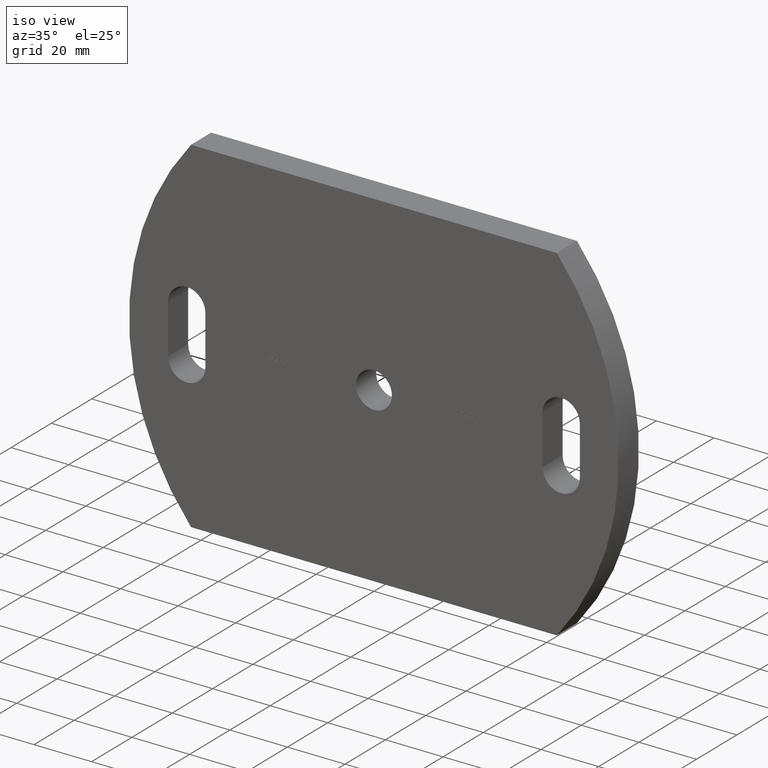
[diagram: clean part render]
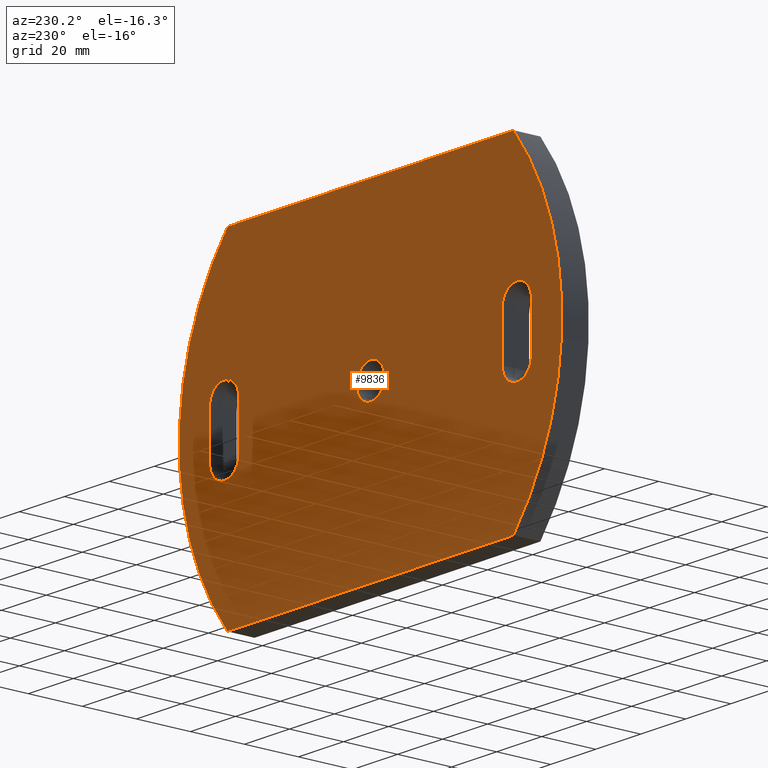
[diagram: tour spotlight — one face highlighted and labeled with its STEP entity id]
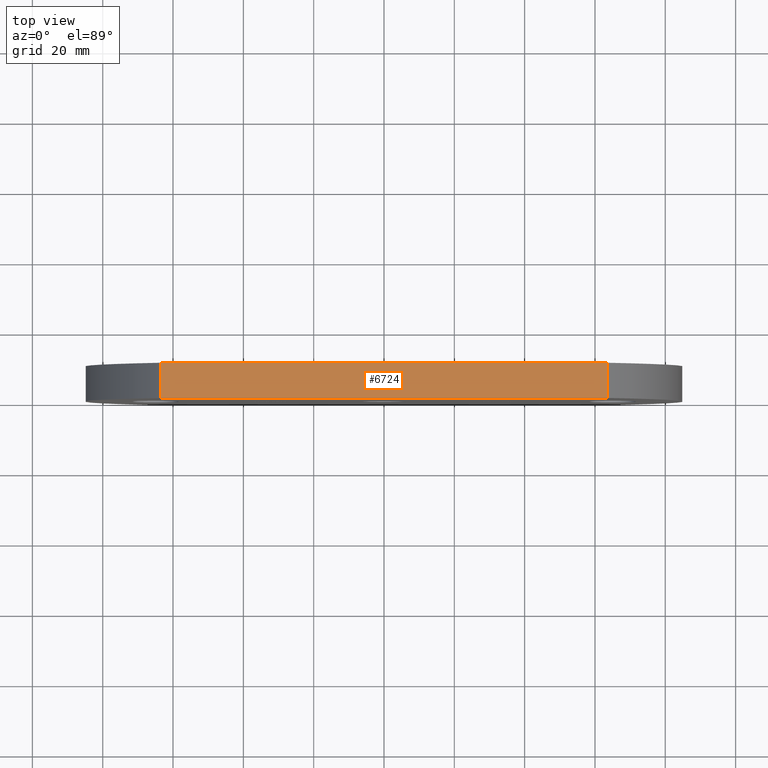
[diagram: tour spotlight — one face highlighted and labeled with its STEP entity id]
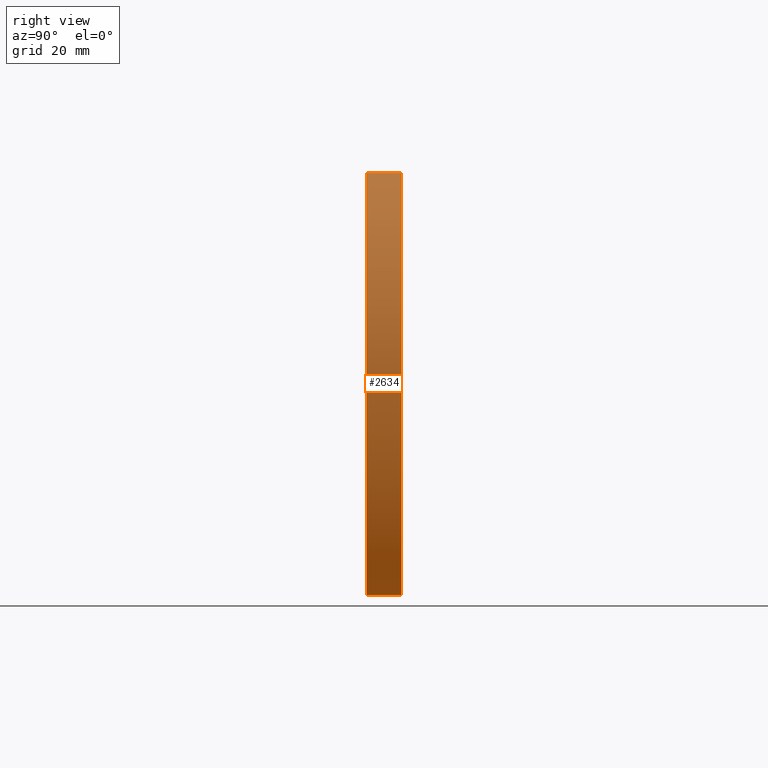
[diagram: tour spotlight — one face highlighted and labeled with its STEP entity id]
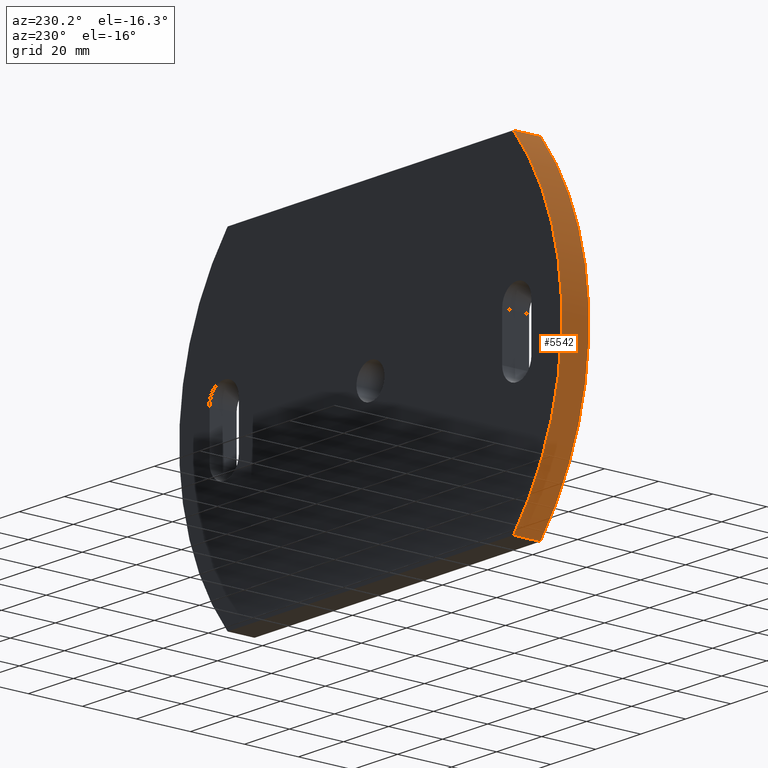
[diagram: tour spotlight — one face highlighted and labeled with its STEP entity id]
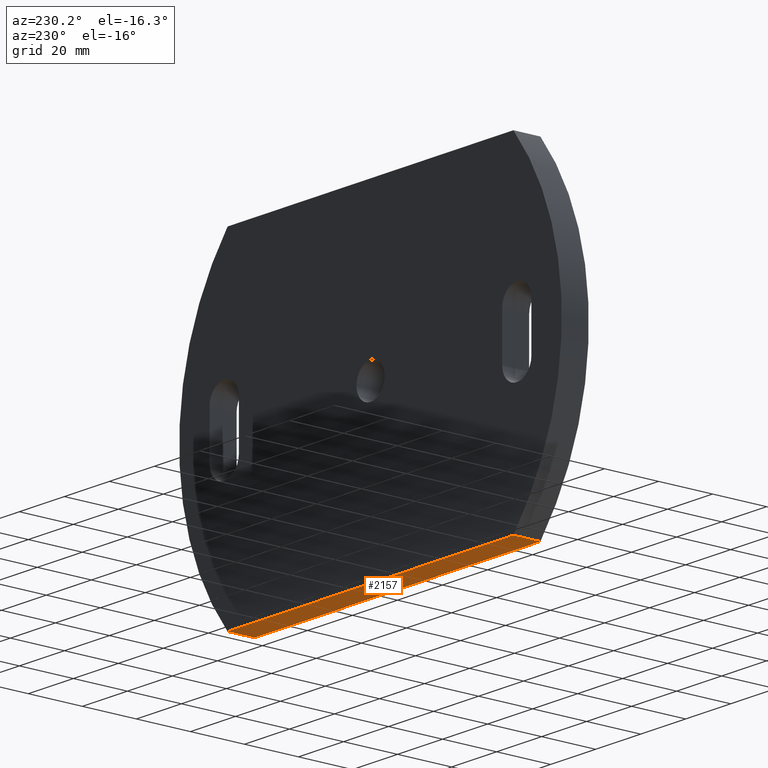
[diagram: tour spotlight — one face highlighted and labeled with its STEP entity id]
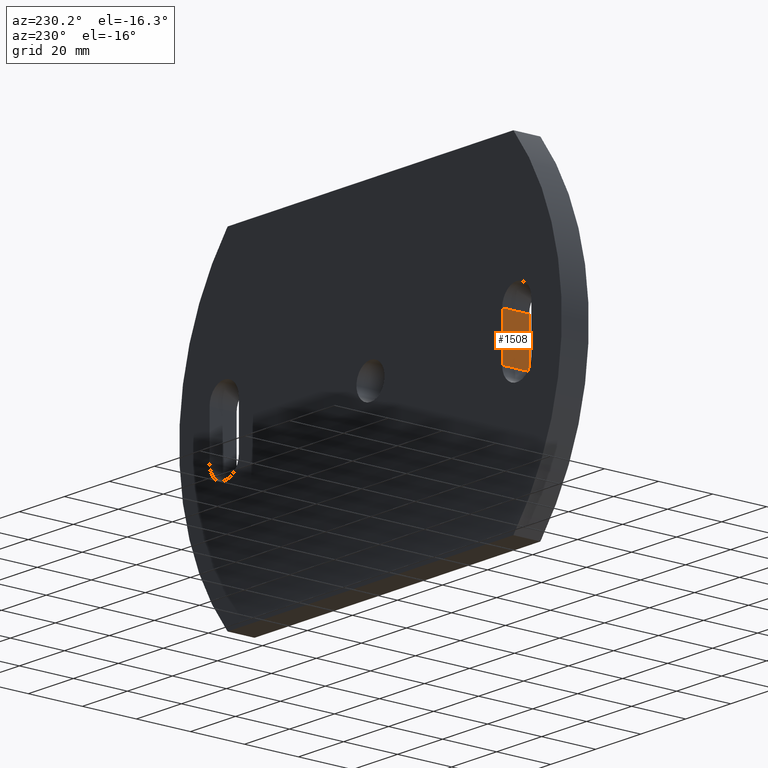
[diagram: tour spotlight — one face highlighted and labeled with its STEP entity id]
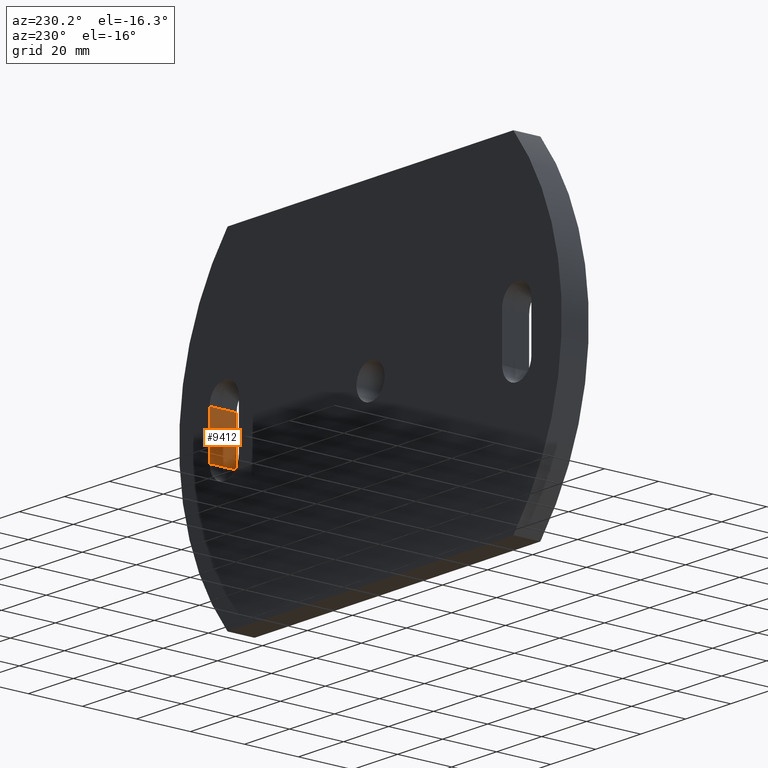
[diagram: tour spotlight — one face highlighted and labeled with its STEP entity id]
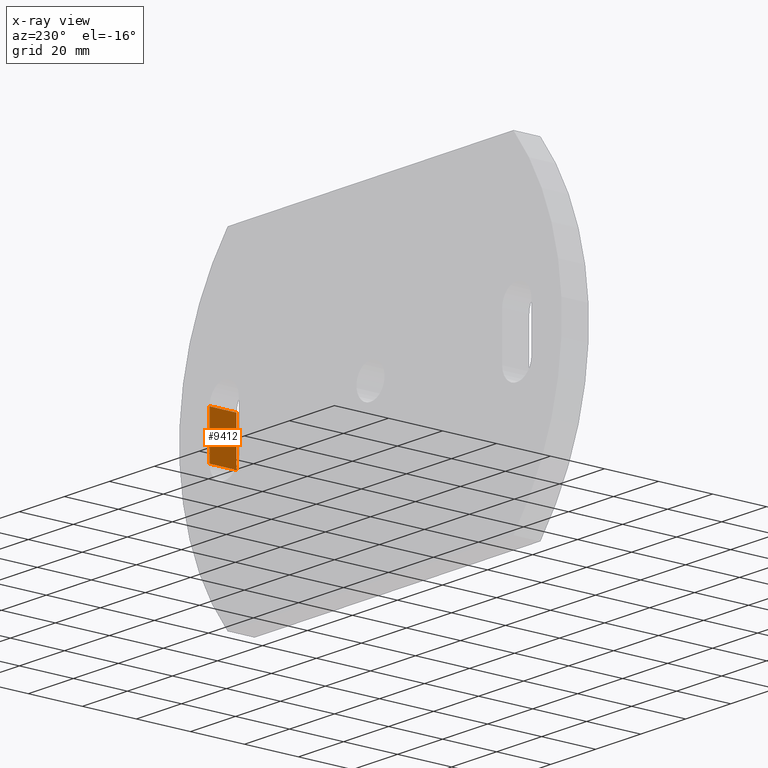
[diagram: x-ray of the same camera — body ghosted, this tour face saturated]
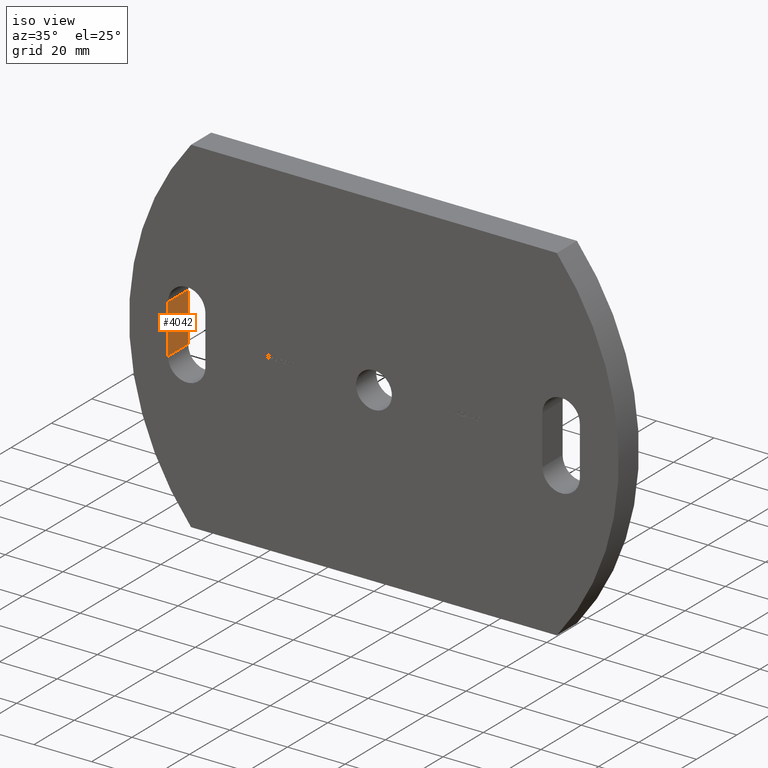
[diagram: tour spotlight — one face highlighted and labeled with its STEP entity id]
A machine part: a face-by-face anatomy tour. The part has 222 B-rep faces; the first image is the clean iso view, then the 8 largest visible faces are spotlighted one at a time (largest first), each with its STEP entity span.

Face 1 — auxiliary view, entity #9836. In plain terms, the highlighted planar face has unit normal (0, -1, 0).
Definition (entity closure, byte-faithful):
#23 = ORIENTED_EDGE ( 'NONE', *, *, #3301, .F. ) ;
#209 = CARTESIAN_POINT ( 'NONE',  ( -65.00000000000000000, 10.00000000000000000, -8.500000000000010700 ) ) ;
#443 = AXIS2_PLACEMENT_3D ( 'NONE', #10272, #9493, #6099 ) ;
#488 = VERTEX_POINT ( 'NONE', #5750 ) ;
#520 = DIRECTION ( 'NONE',  ( 0.0000000000000000000, 1.000000000000000000, 0.0000000000000000000 ) ) ;
#551 = VECTOR ( 'NONE', #7333, 1000.000000000000000 ) ;
#569 = VERTEX_POINT ( 'NONE', #4309 ) ;
#602 = VERTEX_POINT ( 'NONE', #8509 ) ;
#675 = CARTESIAN_POINT ( 'NONE',  ( -71.50000000000000000, 10.00000000000000000, 8.499999999999982200 ) ) ;
#719 = ORIENTED_EDGE ( 'NONE', *, *, #7310, .F. ) ;
#732 = AXIS2_PLACEMENT_3D ( 'NONE', #2830, #6996, #3647 ) ;
#890 = FACE_BOUND ( 'NONE', #6269, .T. ) ;
#921 = CIRCLE ( 'NONE', #732, 6.500000000000005300 ) ;
#929 = EDGE_LOOP ( 'NONE', ( #9715, #8603 ) ) ;
#991 = PLANE ( 'NONE',  #4669 ) ;
#1014 = DIRECTION ( 'NONE',  ( 0.0000000000000000000, 0.0000000000000000000, 1.000000000000000000 ) ) ;
#1066 = EDGE_CURVE ( 'NONE', #2252, #2362, #4580, .T. ) ;
#1146 = LINE ( 'NONE', #7281, #8563 ) ;
#1161 = CIRCLE ( 'NONE', #8375, 6.500000000000005300 ) ;
#1301 = CARTESIAN_POINT ( 'NONE',  ( 0.0000000000000000000, 10.00000000000000000, 0.0000000000000000000 ) ) ;
#1333 = CARTESIAN_POINT ( 'NONE',  ( 58.49999999999998600, 10.00000000000000000, -8.500000000000008900 ) ) ;
#1354 = CARTESIAN_POINT ( 'NONE',  ( 0.0000000000000000000, 10.00000000000000000, 0.0000000000000000000 ) ) ;
#1399 = VERTEX_POINT ( 'NONE', #1914 ) ;
#1411 = VERTEX_POINT ( 'NONE', #3824 ) ;
#1569 = CARTESIAN_POINT ( 'NONE',  ( -71.50000000000000000, 10.00000000000000000, -8.499999999999985800 ) ) ;
#1619 = EDGE_CURVE ( 'NONE', #2362, #9214, #4570, .T. ) ;
#1764 = VERTEX_POINT ( 'NONE', #7202 ) ;
#1838 = VERTEX_POINT ( 'NONE', #3741 ) ;
#1843 = CARTESIAN_POINT ( 'NONE',  ( -9.470930232558071500, 10.00000000000000000, 0.0000000000000000000 ) ) ;
#1914 = CARTESIAN_POINT ( 'NONE',  ( -65.00000000000000000, 10.00000000000000000, 14.99999999999998000 ) ) ;
#1929 = EDGE_CURVE ( 'NONE', #6948, #4202, #1161, .T. ) ;
#1996 = VERTEX_POINT ( 'NONE', #9534 ) ;
#1999 = DIRECTION ( 'NONE',  ( 0.0000000000000000000, 0.0000000000000000000, 1.000000000000000000 ) ) ;
#2232 = EDGE_CURVE ( 'NONE', #1399, #1838, #6102, .T. ) ;
#2252 = VERTEX_POINT ( 'NONE', #9168 ) ;
#2345 = AXIS2_PLACEMENT_3D ( 'NONE', #6882, #5190, #6133 ) ;
#2362 = VERTEX_POINT ( 'NONE', #8503 ) ;
#2408 = AXIS2_PLACEMENT_3D ( 'NONE', #1301, #4592, #7801 ) ;
#2488 = DIRECTION ( 'NONE',  ( -1.000000000000000000, -0.0000000000000000000, -3.278217592397115900E-016 ) ) ;
#2547 = DIRECTION ( 'NONE',  ( 0.0000000000000000000, 0.0000000000000000000, 1.000000000000000000 ) ) ;
#2554 = AXIS2_PLACEMENT_3D ( 'NONE', #8424, #4376, #3577 ) ;
#2629 = ORIENTED_EDGE ( 'NONE', *, *, #3654, .F. ) ;
#2670 = DIRECTION ( 'NONE',  ( 0.0000000000000000000, -1.000000000000000000, 0.0000000000000000000 ) ) ;
#2685 = LINE ( 'NONE', #1333, #4663 ) ;
#2830 = CARTESIAN_POINT ( 'NONE',  ( 65.00000000000000000, 10.00000000000000000, 8.500000000000010700 ) ) ;
#3005 = CIRCLE ( 'NONE', #2554, 94.47093023255811800 ) ;
#3180 = EDGE_LOOP ( 'NONE', ( #2629, #8024, #23, #719, #6128 ) ) ;
#3279 = VECTOR ( 'NONE', #9814, 1000.000000000000000 ) ;
#3301 = EDGE_CURVE ( 'NONE', #602, #6948, #6851, .T. ) ;
#3577 = DIRECTION ( 'NONE',  ( 0.0000000000000000000, 0.0000000000000000000, 1.000000000000000000 ) ) ;
#3647 = DIRECTION ( 'NONE',  ( 0.0000000000000000000, 0.0000000000000000000, 1.000000000000000000 ) ) ;
#3654 = EDGE_CURVE ( 'NONE', #4202, #1996, #2685, .T. ) ;
#3741 = CARTESIAN_POINT ( 'NONE',  ( -58.50000000000000700, 10.00000000000000000, 8.499999999999984000 ) ) ;
#3793 = CARTESIAN_POINT ( 'NONE',  ( 65.00000000000000000, 10.00000000000000000, 8.500000000000010700 ) ) ;
#3824 = CARTESIAN_POINT ( 'NONE',  ( -63.49999999999995700, 10.00000000000000000, -60.00000000000004300 ) ) ;
#4099 = CARTESIAN_POINT ( 'NONE',  ( -65.00000000000000000, 10.00000000000000000, 8.499999999999989300 ) ) ;
#4139 = CARTESIAN_POINT ( 'NONE',  ( -63.50000000000001400, 10.00000000000000000, 59.99999999999997900 ) ) ;
#4181 = ORIENTED_EDGE ( 'NONE', *, *, #5363, .F. ) ;
#4202 = VERTEX_POINT ( 'NONE', #6445 ) ;
#4309 = CARTESIAN_POINT ( 'NONE',  ( 0.0000000000000000000, 10.00000000000000000, 6.250000000000000000 ) ) ;
#4376 = DIRECTION ( 'NONE',  ( 0.0000000000000000000, 1.000000000000000000, 0.0000000000000000000 ) ) ;
#4570 = CIRCLE ( 'NONE', #443, 94.47093023255808900 ) ;
#4580 = LINE ( 'NONE', #4139, #3279 ) ;
#4592 = DIRECTION ( 'NONE',  ( 0.0000000000000000000, 1.000000000000000000, 0.0000000000000000000 ) ) ;
#4663 = VECTOR ( 'NONE', #8008, 1000.000000000000000 ) ;
#4669 = AXIS2_PLACEMENT_3D ( 'NONE', #1843, #2670, #8493 ) ;
#4926 = AXIS2_PLACEMENT_3D ( 'NONE', #3793, #6957, #1999 ) ;
#4976 = CARTESIAN_POINT ( 'NONE',  ( -58.50000000000000700, 10.00000000000000000, -8.499999999999984000 ) ) ;
#5061 = FACE_OUTER_BOUND ( 'NONE', #8954, .T. ) ;
#5073 = VERTEX_POINT ( 'NONE', #675 ) ;
#5139 = DIRECTION ( 'NONE',  ( 0.0000000000000000000, 1.000000000000000000, 0.0000000000000000000 ) ) ;
#5156 = VERTEX_POINT ( 'NONE', #7423 ) ;
#5190 = DIRECTION ( 'NONE',  ( 0.0000000000000000000, 1.000000000000000000, 0.0000000000000000000 ) ) ;
#5321 = FACE_BOUND ( 'NONE', #3180, .T. ) ;
#5363 = EDGE_CURVE ( 'NONE', #9635, #5156, #9212, .T. ) ;
#5590 = CARTESIAN_POINT ( 'NONE',  ( -58.50000000000000700, 10.00000000000000000, -8.499999999999984000 ) ) ;
#5750 = CARTESIAN_POINT ( 'NONE',  ( 65.00000000000000000, 10.00000000000000000, 15.00000000000001600 ) ) ;
#5841 = CIRCLE ( 'NONE', #4926, 6.500000000000005300 ) ;
#6099 = DIRECTION ( 'NONE',  ( 0.0000000000000000000, 0.0000000000000000000, -1.000000000000000000 ) ) ;
#6102 = CIRCLE ( 'NONE', #9833, 6.499999999999992000 ) ;
#6128 = ORIENTED_EDGE ( 'NONE', *, *, #9516, .F. ) ;
#6130 = LINE ( 'NONE', #4976, #551 ) ;
#6133 = DIRECTION ( 'NONE',  ( 0.0000000000000000000, 0.0000000000000000000, 1.000000000000000000 ) ) ;
#6269 = EDGE_LOOP ( 'NONE', ( #7709, #4181, #6545, #10508, #8585 ) ) ;
#6445 = CARTESIAN_POINT ( 'NONE',  ( 58.49999999999998600, 10.00000000000000000, -8.500000000000008900 ) ) ;
#6520 = LINE ( 'NONE', #1569, #7923 ) ;
#6545 = ORIENTED_EDGE ( 'NONE', *, *, #7524, .F. ) ;
#6709 = CARTESIAN_POINT ( 'NONE',  ( 71.50000000000000000, 10.00000000000000000, -8.500000000000010700 ) ) ;
#6720 = ORIENTED_EDGE ( 'NONE', *, *, #10295, .T. ) ;
#6790 = ORIENTED_EDGE ( 'NONE', *, *, #8648, .T. ) ;
#6817 = DIRECTION ( 'NONE',  ( 0.0000000000000000000, 0.0000000000000000000, 1.000000000000000000 ) ) ;
#6851 = LINE ( 'NONE', #6709, #10630 ) ;
#6882 = CARTESIAN_POINT ( 'NONE',  ( -65.00000000000000000, 10.00000000000000000, 8.499999999999989300 ) ) ;
#6940 = CARTESIAN_POINT ( 'NONE',  ( 71.50000000000000000, 10.00000000000000000, -8.500000000000010700 ) ) ;
#6948 = VERTEX_POINT ( 'NONE', #6940 ) ;
#6957 = DIRECTION ( 'NONE',  ( 0.0000000000000000000, 1.000000000000000000, 0.0000000000000000000 ) ) ;
#6964 = EDGE_CURVE ( 'NONE', #569, #1764, #10029, .T. ) ;
#6996 = DIRECTION ( 'NONE',  ( 0.0000000000000000000, 1.000000000000000000, 0.0000000000000000000 ) ) ;
#7151 = DIRECTION ( 'NONE',  ( 0.0000000000000000000, 0.0000000000000000000, 1.000000000000000000 ) ) ;
#7202 = CARTESIAN_POINT ( 'NONE',  ( 7.654042494670957600E-016, 10.00000000000000000, -6.250000000000000000 ) ) ;
#7225 = CARTESIAN_POINT ( 'NONE',  ( 65.00000000000000000, 10.00000000000000000, -8.499999999999987600 ) ) ;
#7265 = FACE_BOUND ( 'NONE', #929, .T. ) ;
#7281 = CARTESIAN_POINT ( 'NONE',  ( -63.49999999999998600, 10.00000000000000000, -60.00000000000001400 ) ) ;
#7287 = EDGE_CURVE ( 'NONE', #1764, #569, #8858, .T. ) ;
#7310 = EDGE_CURVE ( 'NONE', #488, #602, #921, .T. ) ;
#7333 = DIRECTION ( 'NONE',  ( -0.0000000000000000000, -0.0000000000000000000, -1.000000000000000000 ) ) ;
#7423 = CARTESIAN_POINT ( 'NONE',  ( -71.50000000000000000, 10.00000000000000000, -8.499999999999985800 ) ) ;
#7524 = EDGE_CURVE ( 'NONE', #1838, #9635, #6130, .T. ) ;
#7533 = ORIENTED_EDGE ( 'NONE', *, *, #1619, .T. ) ;
#7709 = ORIENTED_EDGE ( 'NONE', *, *, #8566, .F. ) ;
#7801 = DIRECTION ( 'NONE',  ( 0.0000000000000000000, 0.0000000000000000000, 1.000000000000000000 ) ) ;
#7923 = VECTOR ( 'NONE', #2547, 1000.000000000000000 ) ;
#8008 = DIRECTION ( 'NONE',  ( 0.0000000000000000000, 0.0000000000000000000, 1.000000000000000000 ) ) ;
#8024 = ORIENTED_EDGE ( 'NONE', *, *, #1929, .F. ) ;
#8110 = DIRECTION ( 'NONE',  ( 0.0000000000000000000, 1.000000000000000000, 0.0000000000000000000 ) ) ;
#8157 = EDGE_CURVE ( 'NONE', #5073, #1399, #9352, .T. ) ;
#8350 = DIRECTION ( 'NONE',  ( 0.0000000000000000000, 1.000000000000000000, 0.0000000000000000000 ) ) ;
#8375 = AXIS2_PLACEMENT_3D ( 'NONE', #7225, #8110, #7151 ) ;
#8424 = CARTESIAN_POINT ( 'NONE',  ( 9.470930232558114200, 10.00000000000000000, 3.469446951953614200E-015 ) ) ;
#8493 = DIRECTION ( 'NONE',  ( 0.0000000000000000000, -0.0000000000000000000, -1.000000000000000000 ) ) ;
#8503 = CARTESIAN_POINT ( 'NONE',  ( 63.49999999999998600, 10.00000000000000000, 60.00000000000002800 ) ) ;
#8509 = CARTESIAN_POINT ( 'NONE',  ( 71.50000000000000000, 10.00000000000000000, 8.500000000000010700 ) ) ;
#8563 = VECTOR ( 'NONE', #2488, 1000.000000000000000 ) ;
#8566 = EDGE_CURVE ( 'NONE', #5156, #5073, #6520, .T. ) ;
#8585 = ORIENTED_EDGE ( 'NONE', *, *, #8157, .F. ) ;
#8603 = ORIENTED_EDGE ( 'NONE', *, *, #7287, .F. ) ;
#8605 = ORIENTED_EDGE ( 'NONE', *, *, #1066, .T. ) ;
#8648 = EDGE_CURVE ( 'NONE', #1411, #2252, #3005, .T. ) ;
#8858 = CIRCLE ( 'NONE', #2408, 6.250000000000000000 ) ;
#8954 = EDGE_LOOP ( 'NONE', ( #7533, #6720, #6790, #8605 ) ) ;
#8993 = CARTESIAN_POINT ( 'NONE',  ( 63.50000000000001400, 10.00000000000000000, -59.99999999999997200 ) ) ;
#9168 = CARTESIAN_POINT ( 'NONE',  ( -63.50000000000001400, 10.00000000000000000, 59.99999999999997900 ) ) ;
#9212 = CIRCLE ( 'NONE', #10107, 6.499999999999992000 ) ;
#9214 = VERTEX_POINT ( 'NONE', #8993 ) ;
#9352 = CIRCLE ( 'NONE', #2345, 6.499999999999992000 ) ;
#9493 = DIRECTION ( 'NONE',  ( 0.0000000000000000000, 1.000000000000000000, -0.0000000000000000000 ) ) ;
#9516 = EDGE_CURVE ( 'NONE', #1996, #488, #5841, .T. ) ;
#9534 = CARTESIAN_POINT ( 'NONE',  ( 58.50000000000000000, 10.00000000000000000, 8.500000000000008900 ) ) ;
#9635 = VERTEX_POINT ( 'NONE', #5590 ) ;
#9715 = ORIENTED_EDGE ( 'NONE', *, *, #6964, .F. ) ;
#9814 = DIRECTION ( 'NONE',  ( 1.000000000000000000, 0.0000000000000000000, 3.824587191129968500E-016 ) ) ;
#9833 = AXIS2_PLACEMENT_3D ( 'NONE', #4099, #8350, #6817 ) ;
#9836 = ADVANCED_FACE ( 'NONE', ( #5321, #890, #7265, #5061 ), #991, .F. ) ;
#10029 = CIRCLE ( 'NONE', #10258, 6.250000000000000000 ) ;
#10039 = DIRECTION ( 'NONE',  ( -0.0000000000000000000, -0.0000000000000000000, -1.000000000000000000 ) ) ;
#10107 = AXIS2_PLACEMENT_3D ( 'NONE', #209, #5139, #1014 ) ;
#10258 = AXIS2_PLACEMENT_3D ( 'NONE', #1354, #520, #10429 ) ;
#10272 = CARTESIAN_POINT ( 'NONE',  ( -9.470930232558071500, 10.00000000000000000, 0.0000000000000000000 ) ) ;
#10295 = EDGE_CURVE ( 'NONE', #9214, #1411, #1146, .T. ) ;
#10429 = DIRECTION ( 'NONE',  ( 0.0000000000000000000, 0.0000000000000000000, 1.000000000000000000 ) ) ;
#10508 = ORIENTED_EDGE ( 'NONE', *, *, #2232, .F. ) ;
#10630 = VECTOR ( 'NONE', #10039, 1000.000000000000000 ) ;

Face 2 — top view, entity #6724. In plain terms, the highlighted planar face has unit normal (0, 0, -1).
Definition (entity closure, byte-faithful):
#15 = DIRECTION ( 'NONE',  ( 1.000000000000000000, 0.0000000000000000000, 3.824587191129968500E-016 ) ) ;
#1053 = CARTESIAN_POINT ( 'NONE',  ( -63.50000000000001400, 10.00000000000000000, 59.99999999999997900 ) ) ;
#1066 = EDGE_CURVE ( 'NONE', #2252, #2362, #4580, .T. ) ;
#1293 = EDGE_CURVE ( 'NONE', #2362, #3189, #6759, .T. ) ;
#1732 = EDGE_LOOP ( 'NONE', ( #5044, #1854, #10488, #2679 ) ) ;
#1759 = DIRECTION ( 'NONE',  ( -1.000000000000000000, 0.0000000000000000000, -3.824587191129968500E-016 ) ) ;
#1854 = ORIENTED_EDGE ( 'NONE', *, *, #1293, .F. ) ;
#2252 = VERTEX_POINT ( 'NONE', #9168 ) ;
#2362 = VERTEX_POINT ( 'NONE', #8503 ) ;
#2679 = ORIENTED_EDGE ( 'NONE', *, *, #5646, .T. ) ;
#2798 = CARTESIAN_POINT ( 'NONE',  ( 63.49999999999998600, 10.00000000000000000, 60.00000000000002800 ) ) ;
#3189 = VERTEX_POINT ( 'NONE', #7870 ) ;
#3279 = VECTOR ( 'NONE', #9814, 1000.000000000000000 ) ;
#3447 = DIRECTION ( 'NONE',  ( 3.824587191129968500E-016, 0.0000000000000000000, -1.000000000000000000 ) ) ;
#3457 = LINE ( 'NONE', #10426, #6831 ) ;
#4139 = CARTESIAN_POINT ( 'NONE',  ( -63.50000000000001400, 10.00000000000000000, 59.99999999999997900 ) ) ;
#4359 = PLANE ( 'NONE',  #8604 ) ;
#4580 = LINE ( 'NONE', #4139, #3279 ) ;
#4620 = FACE_OUTER_BOUND ( 'NONE', #1732, .T. ) ;
#5044 = ORIENTED_EDGE ( 'NONE', *, *, #7140, .T. ) ;
#5646 = EDGE_CURVE ( 'NONE', #2252, #7098, #3457, .T. ) ;
#6388 = VECTOR ( 'NONE', #8580, 1000.000000000000000 ) ;
#6526 = VECTOR ( 'NONE', #15, 1000.000000000000000 ) ;
#6724 = ADVANCED_FACE ( 'NONE', ( #4620 ), #4359, .F. ) ;
#6759 = LINE ( 'NONE', #2798, #6388 ) ;
#6831 = VECTOR ( 'NONE', #7953, 1000.000000000000000 ) ;
#7098 = VERTEX_POINT ( 'NONE', #7342 ) ;
#7140 = EDGE_CURVE ( 'NONE', #7098, #3189, #7817, .T. ) ;
#7342 = CARTESIAN_POINT ( 'NONE',  ( -63.50000000000001400, 0.0000000000000000000, 59.99999999999997900 ) ) ;
#7585 = CARTESIAN_POINT ( 'NONE',  ( -63.50000000000001400, 0.0000000000000000000, 59.99999999999997900 ) ) ;
#7817 = LINE ( 'NONE', #7585, #6526 ) ;
#7870 = CARTESIAN_POINT ( 'NONE',  ( 63.49999999999998600, 0.0000000000000000000, 60.00000000000002800 ) ) ;
#7953 = DIRECTION ( 'NONE',  ( -0.0000000000000000000, -1.000000000000000000, -0.0000000000000000000 ) ) ;
#8503 = CARTESIAN_POINT ( 'NONE',  ( 63.49999999999998600, 10.00000000000000000, 60.00000000000002800 ) ) ;
#8580 = DIRECTION ( 'NONE',  ( -0.0000000000000000000, -1.000000000000000000, -0.0000000000000000000 ) ) ;
#8604 = AXIS2_PLACEMENT_3D ( 'NONE', #1053, #3447, #1759 ) ;
#9168 = CARTESIAN_POINT ( 'NONE',  ( -63.50000000000001400, 10.00000000000000000, 59.99999999999997900 ) ) ;
#9814 = DIRECTION ( 'NONE',  ( 1.000000000000000000, 0.0000000000000000000, 3.824587191129968500E-016 ) ) ;
#10426 = CARTESIAN_POINT ( 'NONE',  ( -63.50000000000001400, 10.00000000000000000, 59.99999999999997900 ) ) ;
#10488 = ORIENTED_EDGE ( 'NONE', *, *, #1066, .F. ) ;

Face 3 — right view, entity #2634. In plain terms, the highlighted cylindrical surface (partial cylindrical patch) has radius 94.4709 mm, axis along (-0, -1, -0).
Definition (entity closure, byte-faithful):
#183 = AXIS2_PLACEMENT_3D ( 'NONE', #2688, #4390, #10165 ) ;
#362 = CARTESIAN_POINT ( 'NONE',  ( -9.470930232558071500, 0.0000000000000000000, 0.0000000000000000000 ) ) ;
#443 = AXIS2_PLACEMENT_3D ( 'NONE', #10272, #9493, #6099 ) ;
#646 = LINE ( 'NONE', #6124, #2070 ) ;
#1293 = EDGE_CURVE ( 'NONE', #2362, #3189, #6759, .T. ) ;
#1355 = CARTESIAN_POINT ( 'NONE',  ( 63.50000000000001400, 0.0000000000000000000, -59.99999999999997200 ) ) ;
#1566 = ORIENTED_EDGE ( 'NONE', *, *, #9882, .F. ) ;
#1619 = EDGE_CURVE ( 'NONE', #2362, #9214, #4570, .T. ) ;
#1828 = EDGE_LOOP ( 'NONE', ( #8877, #1566, #10197, #4056 ) ) ;
#1887 = DIRECTION ( 'NONE',  ( 0.0000000000000000000, 0.0000000000000000000, -1.000000000000000000 ) ) ;
#2070 = VECTOR ( 'NONE', #8528, 1000.000000000000000 ) ;
#2072 = FACE_OUTER_BOUND ( 'NONE', #1828, .T. ) ;
#2362 = VERTEX_POINT ( 'NONE', #8503 ) ;
#2634 = ADVANCED_FACE ( 'NONE', ( #2072 ), #4686, .T. ) ;
#2688 = CARTESIAN_POINT ( 'NONE',  ( -9.470930232558071500, 10.00000000000000000, 0.0000000000000000000 ) ) ;
#2798 = CARTESIAN_POINT ( 'NONE',  ( 63.49999999999998600, 10.00000000000000000, 60.00000000000002800 ) ) ;
#3189 = VERTEX_POINT ( 'NONE', #7870 ) ;
#4056 = ORIENTED_EDGE ( 'NONE', *, *, #1293, .T. ) ;
#4192 = CIRCLE ( 'NONE', #5687, 94.47093023255808900 ) ;
#4390 = DIRECTION ( 'NONE',  ( -0.0000000000000000000, -1.000000000000000000, -0.0000000000000000000 ) ) ;
#4570 = CIRCLE ( 'NONE', #443, 94.47093023255808900 ) ;
#4606 = VERTEX_POINT ( 'NONE', #1355 ) ;
#4686 = CYLINDRICAL_SURFACE ( 'NONE', #183, 94.47093023255808900 ) ;
#5687 = AXIS2_PLACEMENT_3D ( 'NONE', #362, #6958, #1887 ) ;
#6099 = DIRECTION ( 'NONE',  ( 0.0000000000000000000, 0.0000000000000000000, -1.000000000000000000 ) ) ;
#6124 = CARTESIAN_POINT ( 'NONE',  ( 63.50000000000001400, 10.00000000000000000, -59.99999999999997200 ) ) ;
#6388 = VECTOR ( 'NONE', #8580, 1000.000000000000000 ) ;
#6759 = LINE ( 'NONE', #2798, #6388 ) ;
#6958 = DIRECTION ( 'NONE',  ( 0.0000000000000000000, 1.000000000000000000, -0.0000000000000000000 ) ) ;
#7870 = CARTESIAN_POINT ( 'NONE',  ( 63.49999999999998600, 0.0000000000000000000, 60.00000000000002800 ) ) ;
#8158 = EDGE_CURVE ( 'NONE', #3189, #4606, #4192, .T. ) ;
#8503 = CARTESIAN_POINT ( 'NONE',  ( 63.49999999999998600, 10.00000000000000000, 60.00000000000002800 ) ) ;
#8528 = DIRECTION ( 'NONE',  ( -0.0000000000000000000, -1.000000000000000000, -0.0000000000000000000 ) ) ;
#8580 = DIRECTION ( 'NONE',  ( -0.0000000000000000000, -1.000000000000000000, -0.0000000000000000000 ) ) ;
#8877 = ORIENTED_EDGE ( 'NONE', *, *, #8158, .T. ) ;
#8993 = CARTESIAN_POINT ( 'NONE',  ( 63.50000000000001400, 10.00000000000000000, -59.99999999999997200 ) ) ;
#9214 = VERTEX_POINT ( 'NONE', #8993 ) ;
#9493 = DIRECTION ( 'NONE',  ( 0.0000000000000000000, 1.000000000000000000, -0.0000000000000000000 ) ) ;
#9882 = EDGE_CURVE ( 'NONE', #9214, #4606, #646, .T. ) ;
#10165 = DIRECTION ( 'NONE',  ( 0.0000000000000000000, 0.0000000000000000000, -1.000000000000000000 ) ) ;
#10197 = ORIENTED_EDGE ( 'NONE', *, *, #1619, .F. ) ;
#10272 = CARTESIAN_POINT ( 'NONE',  ( -9.470930232558071500, 10.00000000000000000, 0.0000000000000000000 ) ) ;

Face 4 — auxiliary view, entity #5542. In plain terms, the highlighted cylindrical surface (partial cylindrical patch) has radius 94.4709 mm, axis along (-0, -1, -0).
Definition (entity closure, byte-faithful):
#344 = DIRECTION ( 'NONE',  ( 0.0000000000000000000, 0.0000000000000000000, -1.000000000000000000 ) ) ;
#1016 = CYLINDRICAL_SURFACE ( 'NONE', #6381, 94.47093023255811800 ) ;
#1411 = VERTEX_POINT ( 'NONE', #3824 ) ;
#1627 = VERTEX_POINT ( 'NONE', #4494 ) ;
#1653 = CARTESIAN_POINT ( 'NONE',  ( 9.470930232558114200, 0.0000000000000000000, 3.469446951953614200E-015 ) ) ;
#2252 = VERTEX_POINT ( 'NONE', #9168 ) ;
#2554 = AXIS2_PLACEMENT_3D ( 'NONE', #8424, #4376, #3577 ) ;
#2805 = CARTESIAN_POINT ( 'NONE',  ( 9.470930232558114200, 10.00000000000000000, 3.469446951953614200E-015 ) ) ;
#2840 = DIRECTION ( 'NONE',  ( -0.0000000000000000000, -1.000000000000000000, -0.0000000000000000000 ) ) ;
#2881 = DIRECTION ( 'NONE',  ( -0.0000000000000000000, -1.000000000000000000, -0.0000000000000000000 ) ) ;
#2949 = AXIS2_PLACEMENT_3D ( 'NONE', #1653, #9116, #4145 ) ;
#2985 = EDGE_LOOP ( 'NONE', ( #4916, #9788, #5047, #4070 ) ) ;
#3005 = CIRCLE ( 'NONE', #2554, 94.47093023255811800 ) ;
#3448 = FACE_OUTER_BOUND ( 'NONE', #2985, .T. ) ;
#3457 = LINE ( 'NONE', #10426, #6831 ) ;
#3577 = DIRECTION ( 'NONE',  ( 0.0000000000000000000, 0.0000000000000000000, 1.000000000000000000 ) ) ;
#3824 = CARTESIAN_POINT ( 'NONE',  ( -63.49999999999995700, 10.00000000000000000, -60.00000000000004300 ) ) ;
#3867 = EDGE_CURVE ( 'NONE', #1627, #7098, #5412, .T. ) ;
#4070 = ORIENTED_EDGE ( 'NONE', *, *, #9031, .T. ) ;
#4145 = DIRECTION ( 'NONE',  ( 0.0000000000000000000, 0.0000000000000000000, 1.000000000000000000 ) ) ;
#4376 = DIRECTION ( 'NONE',  ( 0.0000000000000000000, 1.000000000000000000, 0.0000000000000000000 ) ) ;
#4494 = CARTESIAN_POINT ( 'NONE',  ( -63.49999999999995700, 0.0000000000000000000, -60.00000000000004300 ) ) ;
#4916 = ORIENTED_EDGE ( 'NONE', *, *, #3867, .T. ) ;
#5047 = ORIENTED_EDGE ( 'NONE', *, *, #8648, .F. ) ;
#5331 = LINE ( 'NONE', #7846, #5853 ) ;
#5412 = CIRCLE ( 'NONE', #2949, 94.47093023255811800 ) ;
#5542 = ADVANCED_FACE ( 'NONE', ( #3448 ), #1016, .T. ) ;
#5646 = EDGE_CURVE ( 'NONE', #2252, #7098, #3457, .T. ) ;
#5853 = VECTOR ( 'NONE', #2840, 1000.000000000000000 ) ;
#6381 = AXIS2_PLACEMENT_3D ( 'NONE', #2805, #2881, #344 ) ;
#6831 = VECTOR ( 'NONE', #7953, 1000.000000000000000 ) ;
#7098 = VERTEX_POINT ( 'NONE', #7342 ) ;
#7342 = CARTESIAN_POINT ( 'NONE',  ( -63.50000000000001400, 0.0000000000000000000, 59.99999999999997900 ) ) ;
#7846 = CARTESIAN_POINT ( 'NONE',  ( -63.49999999999995700, 10.00000000000000000, -60.00000000000004300 ) ) ;
#7953 = DIRECTION ( 'NONE',  ( -0.0000000000000000000, -1.000000000000000000, -0.0000000000000000000 ) ) ;
#8424 = CARTESIAN_POINT ( 'NONE',  ( 9.470930232558114200, 10.00000000000000000, 3.469446951953614200E-015 ) ) ;
#8648 = EDGE_CURVE ( 'NONE', #1411, #2252, #3005, .T. ) ;
#9031 = EDGE_CURVE ( 'NONE', #1411, #1627, #5331, .T. ) ;
#9116 = DIRECTION ( 'NONE',  ( 0.0000000000000000000, 1.000000000000000000, 0.0000000000000000000 ) ) ;
#9168 = CARTESIAN_POINT ( 'NONE',  ( -63.50000000000001400, 10.00000000000000000, 59.99999999999997900 ) ) ;
#9788 = ORIENTED_EDGE ( 'NONE', *, *, #5646, .F. ) ;
#10426 = CARTESIAN_POINT ( 'NONE',  ( -63.50000000000001400, 10.00000000000000000, 59.99999999999997900 ) ) ;

Face 5 — auxiliary view, entity #2157. In plain terms, the highlighted planar face has unit normal (-0, 0, 1).
Definition (entity closure, byte-faithful):
#340 = CARTESIAN_POINT ( 'NONE',  ( -63.49999999999998600, 10.00000000000000000, -60.00000000000001400 ) ) ;
#622 = DIRECTION ( 'NONE',  ( -3.278217592397115900E-016, 0.0000000000000000000, 1.000000000000000000 ) ) ;
#646 = LINE ( 'NONE', #6124, #2070 ) ;
#1146 = LINE ( 'NONE', #7281, #8563 ) ;
#1355 = CARTESIAN_POINT ( 'NONE',  ( 63.50000000000001400, 0.0000000000000000000, -59.99999999999997200 ) ) ;
#1411 = VERTEX_POINT ( 'NONE', #3824 ) ;
#1526 = DIRECTION ( 'NONE',  ( 1.000000000000000000, 0.0000000000000000000, 3.278217592397115900E-016 ) ) ;
#1627 = VERTEX_POINT ( 'NONE', #4494 ) ;
#1805 = EDGE_CURVE ( 'NONE', #4606, #1627, #3655, .T. ) ;
#1922 = ORIENTED_EDGE ( 'NONE', *, *, #9882, .T. ) ;
#2070 = VECTOR ( 'NONE', #8528, 1000.000000000000000 ) ;
#2157 = ADVANCED_FACE ( 'NONE', ( #5325 ), #9942, .F. ) ;
#2488 = DIRECTION ( 'NONE',  ( -1.000000000000000000, -0.0000000000000000000, -3.278217592397115900E-016 ) ) ;
#2840 = DIRECTION ( 'NONE',  ( -0.0000000000000000000, -1.000000000000000000, -0.0000000000000000000 ) ) ;
#3655 = LINE ( 'NONE', #4067, #4057 ) ;
#3824 = CARTESIAN_POINT ( 'NONE',  ( -63.49999999999995700, 10.00000000000000000, -60.00000000000004300 ) ) ;
#4057 = VECTOR ( 'NONE', #10208, 1000.000000000000000 ) ;
#4067 = CARTESIAN_POINT ( 'NONE',  ( -63.49999999999998600, 0.0000000000000000000, -60.00000000000001400 ) ) ;
#4383 = ORIENTED_EDGE ( 'NONE', *, *, #9031, .F. ) ;
#4494 = CARTESIAN_POINT ( 'NONE',  ( -63.49999999999995700, 0.0000000000000000000, -60.00000000000004300 ) ) ;
#4606 = VERTEX_POINT ( 'NONE', #1355 ) ;
#5325 = FACE_OUTER_BOUND ( 'NONE', #8770, .T. ) ;
#5331 = LINE ( 'NONE', #7846, #5853 ) ;
#5853 = VECTOR ( 'NONE', #2840, 1000.000000000000000 ) ;
#6124 = CARTESIAN_POINT ( 'NONE',  ( 63.50000000000001400, 10.00000000000000000, -59.99999999999997200 ) ) ;
#7281 = CARTESIAN_POINT ( 'NONE',  ( -63.49999999999998600, 10.00000000000000000, -60.00000000000001400 ) ) ;
#7846 = CARTESIAN_POINT ( 'NONE',  ( -63.49999999999995700, 10.00000000000000000, -60.00000000000004300 ) ) ;
#8528 = DIRECTION ( 'NONE',  ( -0.0000000000000000000, -1.000000000000000000, -0.0000000000000000000 ) ) ;
#8563 = VECTOR ( 'NONE', #2488, 1000.000000000000000 ) ;
#8722 = AXIS2_PLACEMENT_3D ( 'NONE', #340, #622, #1526 ) ;
#8770 = EDGE_LOOP ( 'NONE', ( #10445, #4383, #8891, #1922 ) ) ;
#8891 = ORIENTED_EDGE ( 'NONE', *, *, #10295, .F. ) ;
#8993 = CARTESIAN_POINT ( 'NONE',  ( 63.50000000000001400, 10.00000000000000000, -59.99999999999997200 ) ) ;
#9031 = EDGE_CURVE ( 'NONE', #1411, #1627, #5331, .T. ) ;
#9214 = VERTEX_POINT ( 'NONE', #8993 ) ;
#9882 = EDGE_CURVE ( 'NONE', #9214, #4606, #646, .T. ) ;
#9942 = PLANE ( 'NONE',  #8722 ) ;
#10208 = DIRECTION ( 'NONE',  ( -1.000000000000000000, -0.0000000000000000000, -3.278217592397115900E-016 ) ) ;
#10295 = EDGE_CURVE ( 'NONE', #9214, #1411, #1146, .T. ) ;
#10445 = ORIENTED_EDGE ( 'NONE', *, *, #1805, .T. ) ;

Face 6 — auxiliary view, entity #1508. In plain terms, the highlighted planar face has unit normal (1, 0, -0).
Definition (entity closure, byte-faithful):
#101 = CARTESIAN_POINT ( 'NONE',  ( -58.50000000000000700, 0.0000000000000000000, 8.499999999999984000 ) ) ;
#444 = LINE ( 'NONE', #101, #4615 ) ;
#551 = VECTOR ( 'NONE', #7333, 1000.000000000000000 ) ;
#1441 = CARTESIAN_POINT ( 'NONE',  ( -58.50000000000000700, 0.0000000000000000000, -8.499999999999984000 ) ) ;
#1508 = ADVANCED_FACE ( 'NONE', ( #8959 ), #9746, .F. ) ;
#1753 = VECTOR ( 'NONE', #3095, 1000.000000000000000 ) ;
#1838 = VERTEX_POINT ( 'NONE', #3741 ) ;
#2423 = ORIENTED_EDGE ( 'NONE', *, *, #2874, .F. ) ;
#2583 = VECTOR ( 'NONE', #6789, 1000.000000000000000 ) ;
#2874 = EDGE_CURVE ( 'NONE', #7906, #9635, #3376, .T. ) ;
#3095 = DIRECTION ( 'NONE',  ( -0.0000000000000000000, -0.0000000000000000000, -1.000000000000000000 ) ) ;
#3157 = CARTESIAN_POINT ( 'NONE',  ( -58.50000000000000700, 0.0000000000000000000, -8.499999999999984000 ) ) ;
#3376 = LINE ( 'NONE', #4382, #2583 ) ;
#3741 = CARTESIAN_POINT ( 'NONE',  ( -58.50000000000000700, 10.00000000000000000, 8.499999999999984000 ) ) ;
#3914 = ORIENTED_EDGE ( 'NONE', *, *, #5305, .T. ) ;
#4382 = CARTESIAN_POINT ( 'NONE',  ( -58.50000000000000700, 0.0000000000000000000, -8.499999999999984000 ) ) ;
#4615 = VECTOR ( 'NONE', #5901, 1000.000000000000000 ) ;
#4819 = DIRECTION ( 'NONE',  ( 1.000000000000000000, 0.0000000000000000000, -0.0000000000000000000 ) ) ;
#4976 = CARTESIAN_POINT ( 'NONE',  ( -58.50000000000000700, 10.00000000000000000, -8.499999999999984000 ) ) ;
#5037 = AXIS2_PLACEMENT_3D ( 'NONE', #1441, #4819, #7278 ) ;
#5305 = EDGE_CURVE ( 'NONE', #6308, #1838, #444, .T. ) ;
#5590 = CARTESIAN_POINT ( 'NONE',  ( -58.50000000000000700, 10.00000000000000000, -8.499999999999984000 ) ) ;
#5592 = CARTESIAN_POINT ( 'NONE',  ( -58.50000000000000700, 0.0000000000000000000, -8.499999999999984000 ) ) ;
#5884 = EDGE_CURVE ( 'NONE', #6308, #7906, #6174, .T. ) ;
#5901 = DIRECTION ( 'NONE',  ( -0.0000000000000000000, 1.000000000000000000, -0.0000000000000000000 ) ) ;
#6130 = LINE ( 'NONE', #4976, #551 ) ;
#6174 = LINE ( 'NONE', #5592, #1753 ) ;
#6308 = VERTEX_POINT ( 'NONE', #9048 ) ;
#6789 = DIRECTION ( 'NONE',  ( -0.0000000000000000000, 1.000000000000000000, -0.0000000000000000000 ) ) ;
#7278 = DIRECTION ( 'NONE',  ( -0.0000000000000000000, 0.0000000000000000000, -1.000000000000000000 ) ) ;
#7333 = DIRECTION ( 'NONE',  ( -0.0000000000000000000, -0.0000000000000000000, -1.000000000000000000 ) ) ;
#7524 = EDGE_CURVE ( 'NONE', #1838, #9635, #6130, .T. ) ;
#7906 = VERTEX_POINT ( 'NONE', #3157 ) ;
#7986 = EDGE_LOOP ( 'NONE', ( #8746, #2423, #8196, #3914 ) ) ;
#8196 = ORIENTED_EDGE ( 'NONE', *, *, #5884, .F. ) ;
#8746 = ORIENTED_EDGE ( 'NONE', *, *, #7524, .T. ) ;
#8959 = FACE_OUTER_BOUND ( 'NONE', #7986, .T. ) ;
#9048 = CARTESIAN_POINT ( 'NONE',  ( -58.50000000000000700, 0.0000000000000000000, 8.499999999999984000 ) ) ;
#9635 = VERTEX_POINT ( 'NONE', #5590 ) ;
#9746 = PLANE ( 'NONE',  #5037 ) ;

Face 7 — auxiliary view, entity #9412. An x-ray twin of the same camera follows (body ghosted, this face saturated) — the face is partly hidden behind the body. In plain terms, the highlighted planar face has unit normal (1, 0, -0).
Definition (entity closure, byte-faithful):
#1 = DIRECTION ( 'NONE',  ( -0.0000000000000000000, 1.000000000000000000, -0.0000000000000000000 ) ) ;
#213 = CARTESIAN_POINT ( 'NONE',  ( 71.50000000000000000, 0.0000000000000000000, -8.500000000000010700 ) ) ;
#533 = DIRECTION ( 'NONE',  ( -0.0000000000000000000, 1.000000000000000000, -0.0000000000000000000 ) ) ;
#572 = CARTESIAN_POINT ( 'NONE',  ( 71.50000000000000000, 0.0000000000000000000, -8.500000000000010700 ) ) ;
#602 = VERTEX_POINT ( 'NONE', #8509 ) ;
#1240 = ORIENTED_EDGE ( 'NONE', *, *, #3301, .T. ) ;
#1289 = VERTEX_POINT ( 'NONE', #9423 ) ;
#1742 = CARTESIAN_POINT ( 'NONE',  ( 71.50000000000000000, 0.0000000000000000000, -8.500000000000010700 ) ) ;
#1743 = VECTOR ( 'NONE', #1, 1000.000000000000000 ) ;
#2288 = EDGE_LOOP ( 'NONE', ( #1240, #9447, #5585, #7637 ) ) ;
#2467 = FACE_OUTER_BOUND ( 'NONE', #2288, .T. ) ;
#2837 = VECTOR ( 'NONE', #533, 1000.000000000000000 ) ;
#3301 = EDGE_CURVE ( 'NONE', #602, #6948, #6851, .T. ) ;
#4244 = CARTESIAN_POINT ( 'NONE',  ( 71.50000000000000000, 0.0000000000000000000, 8.500000000000010700 ) ) ;
#4872 = AXIS2_PLACEMENT_3D ( 'NONE', #1742, #7547, #5780 ) ;
#4973 = CARTESIAN_POINT ( 'NONE',  ( 71.50000000000000000, 0.0000000000000000000, 8.500000000000010700 ) ) ;
#5310 = LINE ( 'NONE', #572, #2837 ) ;
#5585 = ORIENTED_EDGE ( 'NONE', *, *, #6747, .F. ) ;
#5780 = DIRECTION ( 'NONE',  ( -0.0000000000000000000, 0.0000000000000000000, -1.000000000000000000 ) ) ;
#5883 = PLANE ( 'NONE',  #4872 ) ;
#6009 = DIRECTION ( 'NONE',  ( -0.0000000000000000000, -0.0000000000000000000, -1.000000000000000000 ) ) ;
#6349 = EDGE_CURVE ( 'NONE', #8983, #602, #7206, .T. ) ;
#6709 = CARTESIAN_POINT ( 'NONE',  ( 71.50000000000000000, 10.00000000000000000, -8.500000000000010700 ) ) ;
#6747 = EDGE_CURVE ( 'NONE', #8983, #1289, #8244, .T. ) ;
#6851 = LINE ( 'NONE', #6709, #10630 ) ;
#6940 = CARTESIAN_POINT ( 'NONE',  ( 71.50000000000000000, 10.00000000000000000, -8.500000000000010700 ) ) ;
#6948 = VERTEX_POINT ( 'NONE', #6940 ) ;
#7206 = LINE ( 'NONE', #4973, #1743 ) ;
#7547 = DIRECTION ( 'NONE',  ( 1.000000000000000000, 0.0000000000000000000, -0.0000000000000000000 ) ) ;
#7637 = ORIENTED_EDGE ( 'NONE', *, *, #6349, .T. ) ;
#8244 = LINE ( 'NONE', #213, #8627 ) ;
#8509 = CARTESIAN_POINT ( 'NONE',  ( 71.50000000000000000, 10.00000000000000000, 8.500000000000010700 ) ) ;
#8627 = VECTOR ( 'NONE', #6009, 1000.000000000000000 ) ;
#8983 = VERTEX_POINT ( 'NONE', #4244 ) ;
#9412 = ADVANCED_FACE ( 'NONE', ( #2467 ), #5883, .F. ) ;
#9423 = CARTESIAN_POINT ( 'NONE',  ( 71.50000000000000000, 0.0000000000000000000, -8.500000000000010700 ) ) ;
#9447 = ORIENTED_EDGE ( 'NONE', *, *, #10195, .F. ) ;
#10039 = DIRECTION ( 'NONE',  ( -0.0000000000000000000, -0.0000000000000000000, -1.000000000000000000 ) ) ;
#10195 = EDGE_CURVE ( 'NONE', #1289, #6948, #5310, .T. ) ;
#10630 = VECTOR ( 'NONE', #10039, 1000.000000000000000 ) ;

Face 8 — iso view, entity #4042. In plain terms, the highlighted planar face has unit normal (-1, 0, 0).
Definition (entity closure, byte-faithful):
#661 = AXIS2_PLACEMENT_3D ( 'NONE', #4567, #7913, #2017 ) ;
#675 = CARTESIAN_POINT ( 'NONE',  ( -71.50000000000000000, 10.00000000000000000, 8.499999999999982200 ) ) ;
#1219 = ORIENTED_EDGE ( 'NONE', *, *, #4013, .F. ) ;
#1569 = CARTESIAN_POINT ( 'NONE',  ( -71.50000000000000000, 10.00000000000000000, -8.499999999999985800 ) ) ;
#2017 = DIRECTION ( 'NONE',  ( 0.0000000000000000000, 0.0000000000000000000, 1.000000000000000000 ) ) ;
#2028 = VERTEX_POINT ( 'NONE', #6745 ) ;
#2047 = PLANE ( 'NONE',  #661 ) ;
#2547 = DIRECTION ( 'NONE',  ( 0.0000000000000000000, 0.0000000000000000000, 1.000000000000000000 ) ) ;
#2564 = VECTOR ( 'NONE', #7010, 1000.000000000000000 ) ;
#2637 = VECTOR ( 'NONE', #9430, 1000.000000000000000 ) ;
#2888 = EDGE_LOOP ( 'NONE', ( #9940, #4709, #1219, #10681 ) ) ;
#3698 = CARTESIAN_POINT ( 'NONE',  ( -71.50000000000000000, 0.0000000000000000000, 8.499999999999982200 ) ) ;
#3893 = LINE ( 'NONE', #7673, #2564 ) ;
#4013 = EDGE_CURVE ( 'NONE', #7416, #2028, #3893, .T. ) ;
#4042 = ADVANCED_FACE ( 'NONE', ( #9686 ), #2047, .F. ) ;
#4227 = LINE ( 'NONE', #10729, #5256 ) ;
#4567 = CARTESIAN_POINT ( 'NONE',  ( -71.50000000000000000, 0.0000000000000000000, -8.499999999999985800 ) ) ;
#4709 = ORIENTED_EDGE ( 'NONE', *, *, #6806, .F. ) ;
#5073 = VERTEX_POINT ( 'NONE', #675 ) ;
#5102 = EDGE_CURVE ( 'NONE', #7416, #5156, #4227, .T. ) ;
#5115 = LINE ( 'NONE', #3698, #2637 ) ;
#5156 = VERTEX_POINT ( 'NONE', #7423 ) ;
#5256 = VECTOR ( 'NONE', #6628, 1000.000000000000000 ) ;
#6520 = LINE ( 'NONE', #1569, #7923 ) ;
#6628 = DIRECTION ( 'NONE',  ( -0.0000000000000000000, 1.000000000000000000, -0.0000000000000000000 ) ) ;
#6745 = CARTESIAN_POINT ( 'NONE',  ( -71.50000000000000000, 0.0000000000000000000, 8.499999999999982200 ) ) ;
#6806 = EDGE_CURVE ( 'NONE', #2028, #5073, #5115, .T. ) ;
#7010 = DIRECTION ( 'NONE',  ( 0.0000000000000000000, 0.0000000000000000000, 1.000000000000000000 ) ) ;
#7416 = VERTEX_POINT ( 'NONE', #9604 ) ;
#7423 = CARTESIAN_POINT ( 'NONE',  ( -71.50000000000000000, 10.00000000000000000, -8.499999999999985800 ) ) ;
#7673 = CARTESIAN_POINT ( 'NONE',  ( -71.50000000000000000, 0.0000000000000000000, -8.499999999999985800 ) ) ;
#7913 = DIRECTION ( 'NONE',  ( -1.000000000000000000, 0.0000000000000000000, 0.0000000000000000000 ) ) ;
#7923 = VECTOR ( 'NONE', #2547, 1000.000000000000000 ) ;
#8566 = EDGE_CURVE ( 'NONE', #5156, #5073, #6520, .T. ) ;
#9430 = DIRECTION ( 'NONE',  ( -0.0000000000000000000, 1.000000000000000000, -0.0000000000000000000 ) ) ;
#9604 = CARTESIAN_POINT ( 'NONE',  ( -71.50000000000000000, 0.0000000000000000000, -8.499999999999985800 ) ) ;
#9686 = FACE_OUTER_BOUND ( 'NONE', #2888, .T. ) ;
#9940 = ORIENTED_EDGE ( 'NONE', *, *, #8566, .T. ) ;
#10681 = ORIENTED_EDGE ( 'NONE', *, *, #5102, .T. ) ;
#10729 = CARTESIAN_POINT ( 'NONE',  ( -71.50000000000000000, 0.0000000000000000000, -8.499999999999985800 ) ) ;